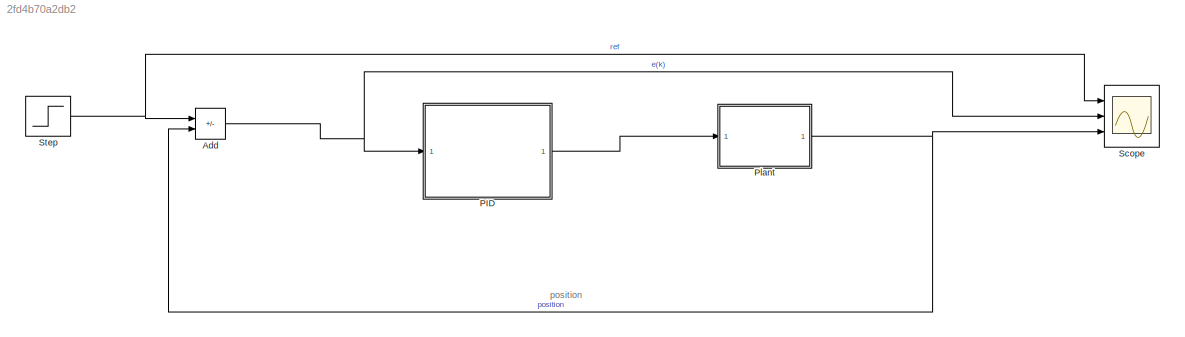
MODEL slx_2fd4b70a2db2
KIND model
CONFIG AbsTol = auto
CONFIG EnableMultiTasking = off
CONFIG FixedStep = auto
CONFIG MaxStep = auto
CONFIG MinStep = auto
CONFIG RelTol = 1e-3
CONFIG SampleTimeConstraint = Unconstrained
CONFIG SolverName = VariableStepAuto
CONFIG StartTime = 0.0
CONFIG StopTime = 1
BLOCK [Sum] Add
  IconShape = rectangular
  Inputs = +-
  Ports = [2, 1]
BLOCK [ModelReference] PID
  ModelNameDialog = PID0
  ModelReferenceVersion = 1.7
  Ports = [1, 1]
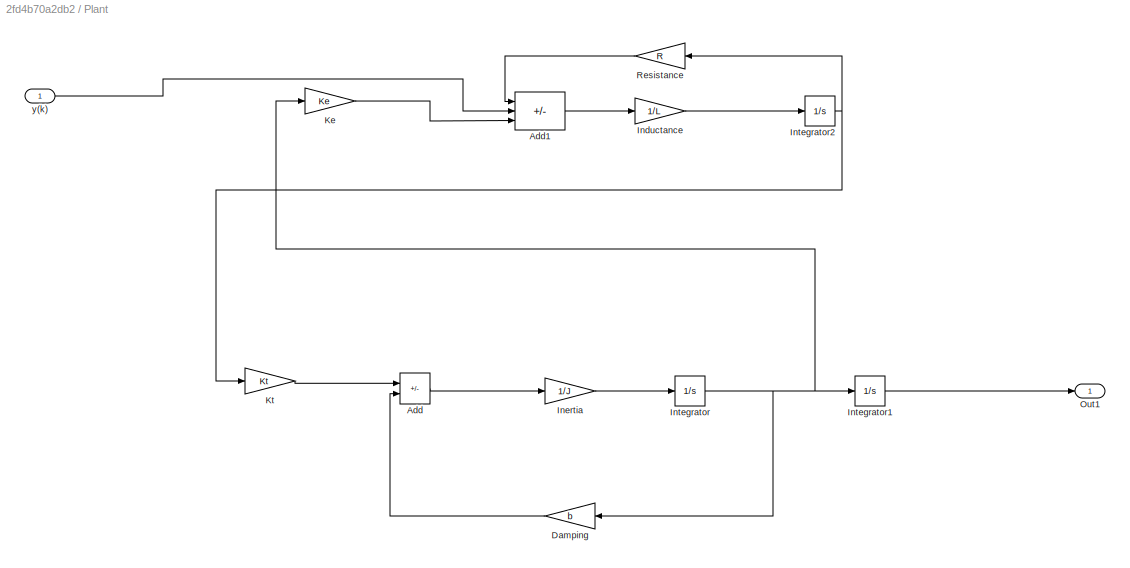
BLOCK [SubSystem] Plant
  Ports = [1, 1]
  RequestExecContextInheritance = off
BLOCK [Sum] Plant/Add
  IconShape = rectangular
  Inputs = +-
  Ports = [2, 1]
BLOCK [Sum] Plant/Add1
  IconShape = rectangular
  Inputs = -+-
  Ports = [3, 1]
BLOCK [Gain] Plant/Damping
  Gain = b
BLOCK [Gain] Plant/Inductance
  Gain = 1/L
BLOCK [Gain] Plant/Inertia
  Gain = 1/J
BLOCK [Integrator] Plant/Integrator
  Ports = [1, 1]
BLOCK [Integrator] Plant/Integrator1
  Ports = [1, 1]
BLOCK [Integrator] Plant/Integrator2
  Ports = [1, 1]
BLOCK [Gain] Plant/Ke
  Gain = Ke
BLOCK [Gain] Plant/Kt
  Gain = Kt
BLOCK [Outport] Plant/Out1
BLOCK [Gain] Plant/Resistance
  Gain = R
BLOCK [Inport] Plant/y(k)
BLOCK [Scope] Scope
  Floating = off
  NumInputPorts = 3
  Ports = [3]
  ScopeSpecificationString = Simulink.scopes.TimeScopeBlockCfg('CurrentConfiguration', extmgr.ConfigurationSet(extmgr.Configuration('Core','General UI',true),extmgr.Configuration('Core','Source UI',true),extmgr.Configuration('Sources','WiredSimulink',true),extmgr.Configuration('Visuals','Time Domain',true,'SerializedDisplays',{struct('MinYLimReal','0.9','MaxYLimReal','1.1','YLabelReal','','MinYLimMag','0.9','MaxYLimMag','1.1'...<+2656ch>
BLOCK [Step] Step
  SampleTime = 0
  Time = 0
ANNOTATION (root): position
NET Add:1 -> PID:1, Scope:2
LINE PID:1 -> Plant:1
LINE Plant/Add1:1 -> Plant/Inductance:1
LINE Plant/Add:1 -> Plant/Inertia:1
LINE Plant/Damping:1 -> Plant/Add:2
LINE Plant/Inductance:1 -> Plant/Integrator2:1
LINE Plant/Inertia:1 -> Plant/Integrator:1
LINE Plant/Integrator1:1 -> Plant/Out1:1
NET Plant/Integrator2:1 -> Plant/Kt:1, Plant/Resistance:1
NET Plant/Integrator:1 -> Plant/Damping:1, Plant/Integrator1:1, Plant/Ke:1
LINE Plant/Ke:1 -> Plant/Add1:3
LINE Plant/Kt:1 -> Plant/Add:1
LINE Plant/Resistance:1 -> Plant/Add1:1
LINE Plant/y(k):1 -> Plant/Add1:2
NET Plant:1 -> Add:2, Scope:3
NET Step:1 -> Add:1, Scope:1
note: NET lines group one-source signal fan-out (src -> all destinations, sorted); 1:1 wires keep LINE
